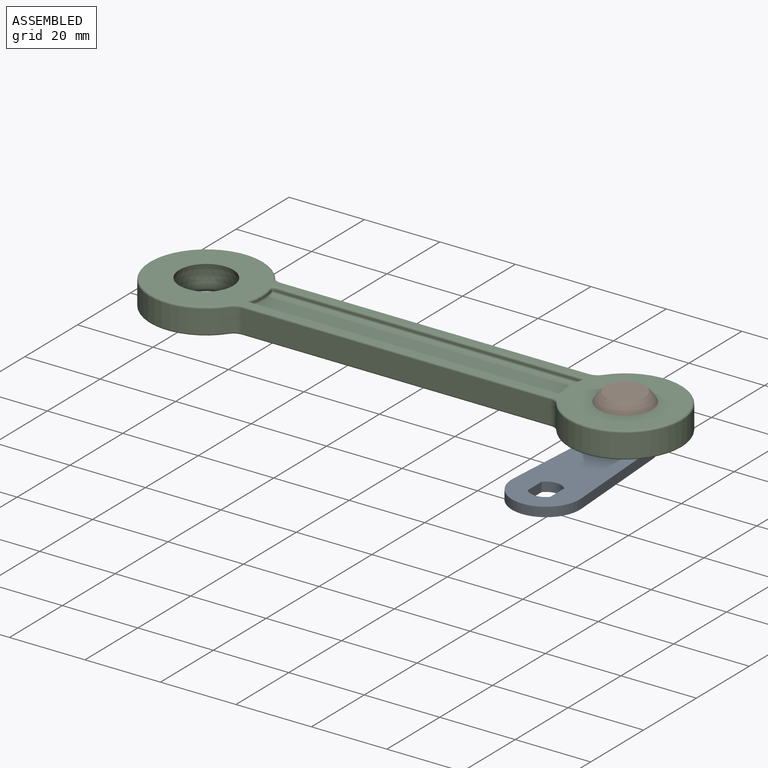
[diagram: assembled view]
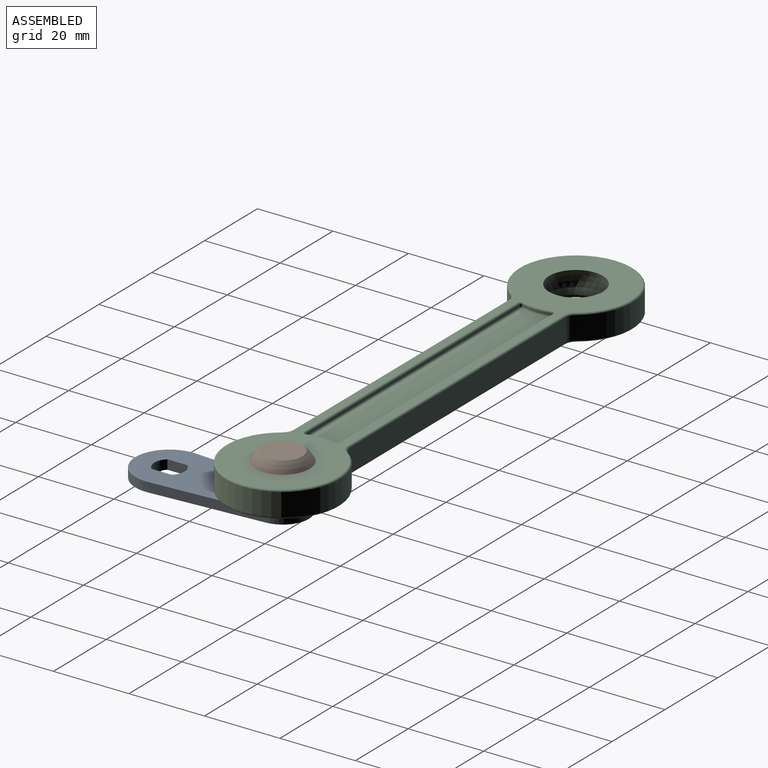
[diagram: assembled view, second angle]
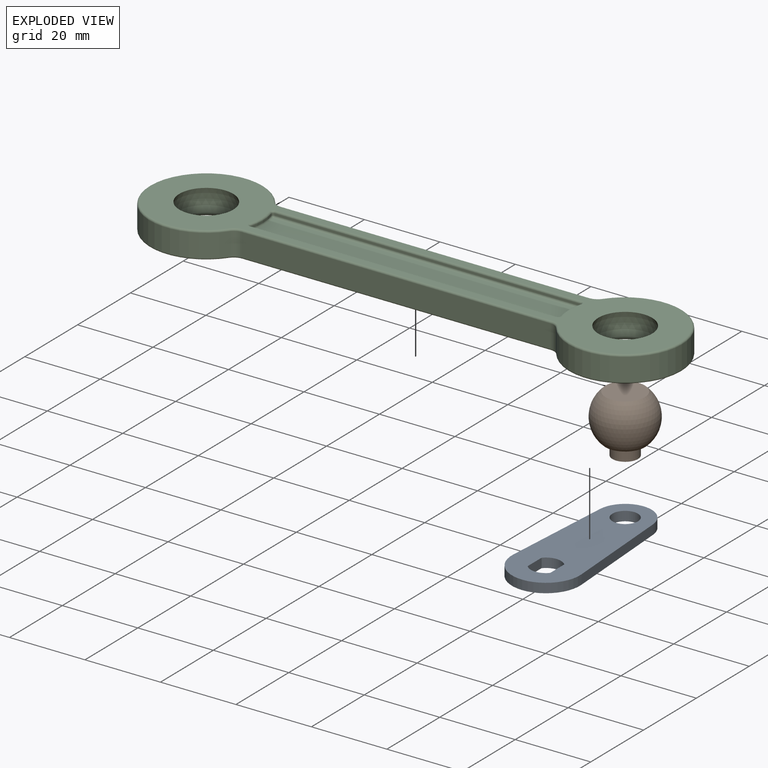
[diagram: exploded view]
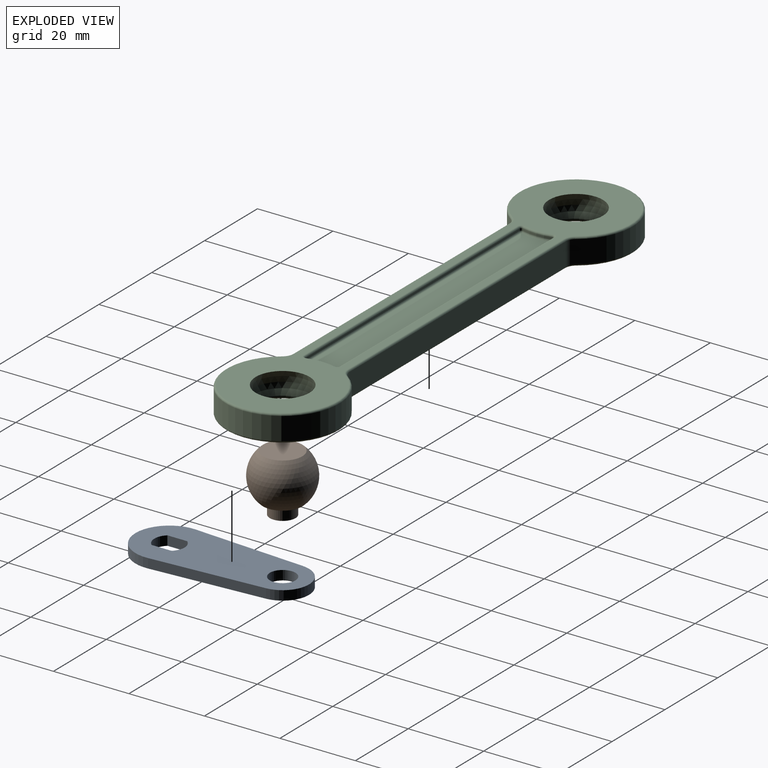
[diagram: exploded view, second angle]
ASSEMBLY  parts=3 mates=3
PART A: 11 faces, bbox 18x46x2.5 mm
  f0: cylinder r=4mm len=6mm, axis (0,0,-1), area 17mm2, adj f1,f6,f9,f10
  f1: plane 5.29x2.5mm, normal (1,0,0), area 13.2mm2, adj f0,f2,f9,f10
  f2: cylinder r=4mm len=6mm, axis (0,0,-1), area 17mm2, adj f1,f6,f9,f10
  f3: plane 29.87x2.5mm, normal (-1,0.07,0), area 74.8mm2, adj f4,f7,f9,f10
  f4: cylinder r=9mm len=18mm, axis (0,0,-1), area 73.7mm2, adj f3,f5,f9,f10
  f5: plane 29.87x2.5mm, normal (1,0.07,0), area 74.8mm2, adj f4,f7,f9,f10
  f6: plane 5.29x2.5mm, normal (-1,0,0), area 13.2mm2, adj f0,f2,f9,f10
  f7: cylinder r=7mm len=13.97mm, axis (0,0,-1), area 52.6mm2, adj f3,f5,f9,f10
  f8: cylinder r=3.4mm len=6.8mm, axis (0,0,-1), area 53.4mm2, adj f9,f10
  f9: plane 46x18mm, normal (0,0,1), area 605.9mm2, adj f0,f1,f2,f3,f4,f5,f6,f7
  f10: plane 46x18mm, normal (0,0,-1), area 605.9mm2, adj f0,f1,f2,f3,f4,f5,f6,f7
PART B: 6 faces, bbox 15.9x15.9x15.3 mm
  f0: cylinder r=3.4mm len=6.8mm, axis (0,0,-1), area 59.8mm2, adj f4,f5
  f1: plane 10.43x10.43mm, normal (0,0,-1), area 37.7mm2, adj f2,f5
  f2: sphere r=7.95mm, area 599.4mm2, adj f1,f3
  f3: plane 10.43x10.43mm, normal (0,0,1), area 85.5mm2, adj f2
  f4: plane 6.8x6.8mm, normal (0,0,-1), area 36.3mm2, adj f0
  f5: torus R=3.9mm, axis (0,0,-1), area 17.7mm2, adj f0,f1
PART C: 80 faces, bbox 143.5x32.5x7 mm
  f0: torus R=3.5mm, axis (0,0,1), area 2.4mm2, adj f1,f2,f11,f12
  f1: cylinder r=0.5mm len=81.76mm, axis (-1,0,0), area 64.2mm2, adj f0,f3,f10,f12
  f2: torus R=14.5mm, axis (0,0,-1), area 58.6mm2, adj f0,f4,f12,f72
  f3: torus R=3.5mm, axis (0,0,1), area 2.4mm2, adj f1,f5,f9,f12
  f4: torus R=3.5mm, axis (0,0,1), area 2.4mm2, adj f2,f6,f12,f73
  f5: torus R=14.5mm, axis (0,0,-1), area 58.6mm2, adj f3,f7,f8,f12
  f6: cylinder r=0.5mm len=81.76mm, axis (1,0,0), area 64.2mm2, adj f4,f7,f12,f74
  f7: torus R=3.5mm, axis (0,0,1), area 2.4mm2, adj f5,f6,f12,f75
  f8: cylinder r=15mm len=30mm, axis (0,0,1), area 453.4mm2, adj f5,f9,f13,f75
  f9: cylinder r=3mm len=6mm, axis (0,0,1), area 17.1mm2, adj f3,f8,f10,f14
  f10: plane 81.76x6mm, normal (0,-1,0), area 490.6mm2, adj f1,f9,f11,f16
  f11: cylinder r=3mm len=6mm, axis (0,0,-1), area 17.1mm2, adj f0,f10,f18,f72
  f12: plane 140x29mm, normal (0,0,1), area 1343.2mm2, adj f0,f1,f2,f3,f4,f5,f6,f7
  f13: torus R=14.5mm, axis (0,0,1), area 58.6mm2, adj f8,f14,f15,f21
  f14: torus R=3.5mm, axis (0,0,-1), area 2.4mm2, adj f9,f13,f16,f21
  f15: torus R=3.5mm, axis (0,0,-1), area 2.4mm2, adj f13,f17,f21,f75
  f16: cylinder r=0.5mm len=81.76mm, axis (1,0,0), area 64.2mm2, adj f10,f14,f18,f21
  f17: cylinder r=0.5mm len=81.76mm, axis (-1,0,0), area 64.2mm2, adj f15,f19,f21,f74
  f18: torus R=3.5mm, axis (0,0,-1), area 2.4mm2, adj f11,f16,f20,f21
  f19: torus R=3.5mm, axis (0,0,-1), area 2.4mm2, adj f17,f20,f21,f73
  f20: torus R=14.5mm, axis (0,0,1), area 58.6mm2, adj f18,f19,f21,f72
  f21: plane 140x29mm, normal (0,0,-1), area 1228.1mm2, adj f13,f14,f15,f16,f17,f18,f19,f20
  f22: cylinder r=0.5mm len=81.05mm, axis (1,0,0), area 63.7mm2, adj f21,f23,f24,f33
  f23: torus R=1mm, axis (0,0,-1), area 1mm2, adj f21,f22,f25,f44
  f24: torus R=1mm, axis (0,0,-1), area 1mm2, adj f21,f22,f26,f32
  f25: torus R=14.5mm, axis (0,0,-1), area 6.1mm2, adj f21,f23,f27,f43
  f26: torus R=14.5mm, axis (0,0,-1), area 6.1mm2, adj f21,f24,f28,f31
  f27: torus R=1mm, axis (0,0,-1), area 1mm2, adj f21,f25,f29,f42
  f28: torus R=1mm, axis (0,0,-1), area 1mm2, adj f21,f26,f29,f30
  f29: cylinder r=0.5mm len=81.05mm, axis (-1,0,0), area 63.7mm2, adj f21,f27,f28,f46
  f30: cylinder r=0.5mm len=0.63mm, axis (0,0,1), area 0.5mm2, adj f28,f31,f37,f46
  f31: cylinder r=15mm len=7.74mm, axis (0,0,-1), area 3.9mm2, adj f26,f30,f32,f36
  f32: cylinder r=0.5mm len=0.63mm, axis (0,0,1), area 0.5mm2, adj f24,f31,f33,f40
  f33: plane 81.05x0.5mm, normal (0,1,0), area 40.5mm2, adj f22,f32,f39,f44
  f34: torus R=15.5mm, axis (0,0,-1), area 6.2mm2, adj f38,f41,f43,f45
  f35: cylinder r=0.5mm len=81.05mm, axis (-1,0,0), area 63.7mm2, adj f37,f38,f45,f46
  f36: torus R=15.5mm, axis (0,0,-1), area 6.2mm2, adj f31,f37,f40,f45
  f37: sphere r=0.5mm, area 0.5mm2, adj f30,f35,f36
  f38: sphere r=0.5mm, area 0.5mm2, adj f34,f35,f42
  f39: cylinder r=0.5mm len=81.05mm, axis (1,0,0), area 63.7mm2, adj f33,f40,f41,f45
  f40: sphere r=0.5mm, area 0.5mm2, adj f32,f36,f39
  f41: sphere r=0.5mm, area 0.5mm2, adj f34,f39,f44
  f42: cylinder r=0.5mm len=0.63mm, axis (0,0,1), area 0.5mm2, adj f27,f38,f43,f46
  f43: cylinder r=15mm len=7.74mm, axis (0,0,-1), area 3.9mm2, adj f25,f34,f42,f44
  f44: cylinder r=0.5mm len=0.63mm, axis (0,0,1), area 0.5mm2, adj f23,f33,f41,f43
  f45: plane 81.05x8mm, normal (0,0,-1), area 642.8mm2, adj f34,f35,f36,f39
  f46: plane 81.05x0.5mm, normal (0,-1,0), area 40.5mm2, adj f29,f30,f35,f42
  f47: torus R=1mm, axis (0,0,1), area 1mm2, adj f12,f48,f49,f58
  f48: cylinder r=0.5mm len=81.05mm, axis (-1,0,0), area 63.7mm2, adj f12,f47,f50,f57
  f49: torus R=14.5mm, axis (0,0,1), area 6.1mm2, adj f12,f47,f51,f70
  f50: torus R=1mm, axis (0,0,1), area 1mm2, adj f12,f48,f52,f56
  f51: torus R=1mm, axis (0,0,1), area 1mm2, adj f12,f49,f53,f68
  f52: torus R=14.5mm, axis (0,0,1), area 6.1mm2, adj f12,f50,f54,f55
  f53: cylinder r=0.5mm len=81.05mm, axis (1,0,0), area 63.7mm2, adj f12,f51,f54,f69
  f54: torus R=1mm, axis (0,0,1), area 1mm2, adj f12,f52,f53,f71
  f55: cylinder r=15mm len=7.74mm, axis (0,0,-1), area 3.9mm2, adj f52,f56,f63,f71
  f56: cylinder r=0.5mm len=0.63mm, axis (0,0,-1), area 0.5mm2, adj f50,f55,f57,f66
  f57: plane 81.05x0.5mm, normal (0,1,0), area 40.5mm2, adj f48,f56,f58,f59
  f58: cylinder r=0.5mm len=0.63mm, axis (0,0,-1), area 0.5mm2, adj f47,f57,f65,f70
  f59: cylinder r=0.5mm len=81.05mm, axis (1,0,0), area 63.7mm2, adj f57,f65,f66,f67
  f60: torus R=15.5mm, axis (0,0,-1), area 6.2mm2, adj f62,f65,f67,f70
  f61: cylinder r=0.5mm len=81.05mm, axis (-1,0,0), area 63.7mm2, adj f62,f64,f67,f69
  f62: sphere r=0.5mm, area 0.5mm2, adj f60,f61,f68
  f63: torus R=15.5mm, axis (0,0,-1), area 6.2mm2, adj f55,f64,f66,f67
  f64: sphere r=0.5mm, area 0.5mm2, adj f61,f63,f71
  f65: sphere r=0.5mm, area 0.5mm2, adj f58,f59,f60
  f66: sphere r=0.5mm, area 0.5mm2, adj f56,f59,f63
  f67: plane 81.05x8mm, normal (0,0,1), area 642.8mm2, adj f59,f60,f61,f63
  f68: cylinder r=0.5mm len=0.63mm, axis (0,0,-1), area 0.5mm2, adj f51,f62,f69,f70
  f69: plane 81.05x0.5mm, normal (0,-1,0), area 40.5mm2, adj f53,f61,f68,f71
  f70: cylinder r=15mm len=7.74mm, axis (0,0,-1), area 3.9mm2, adj f49,f58,f60,f68
  f71: cylinder r=0.5mm len=0.63mm, axis (0,0,-1), area 0.5mm2, adj f54,f55,f64,f69
  f72: cylinder r=15mm len=30mm, axis (0,0,1), area 453.4mm2, adj f2,f11,f20,f73
  f73: cylinder r=3mm len=6mm, axis (0,0,-1), area 17.1mm2, adj f4,f19,f72,f74
  f74: plane 81.76x6mm, normal (0,1,0), area 490.6mm2, adj f6,f17,f73,f75
  f75: cylinder r=3mm len=6mm, axis (0,0,-1), area 17.1mm2, adj f7,f8,f15,f74
  f76: torus R=8.32mm, axis (0,0,1), area 73.6mm2, adj f21,f77
  f77: sphere r=7.95mm, area 297.4mm2, adj f12,f76
  f78: torus R=8.32mm, axis (0,0,1), area 73.6mm2, adj f21,f79
  f79: sphere r=7.95mm, area 297.4mm2, adj f12,f78
PLACE A t=(0.01,-31.26,-2.13)mm
PLACE B t=(0.01,-1.26,6.37)mm
PLACE C t=(-55.49,-1.26,6.37)mm
MATE ball C.f5 <-> B.f0  axis (0,0,1) through (0.01,-1.26,6.37)mm
MATE cylindrical A.f8 <-> B.f0  axis (0,0,-1) through (0.01,-1.26,-0.88)mm
MATE planar B.f0 <-> A.f9  axis (0,0,-1) through (0.01,-1.26,0.37)mm
